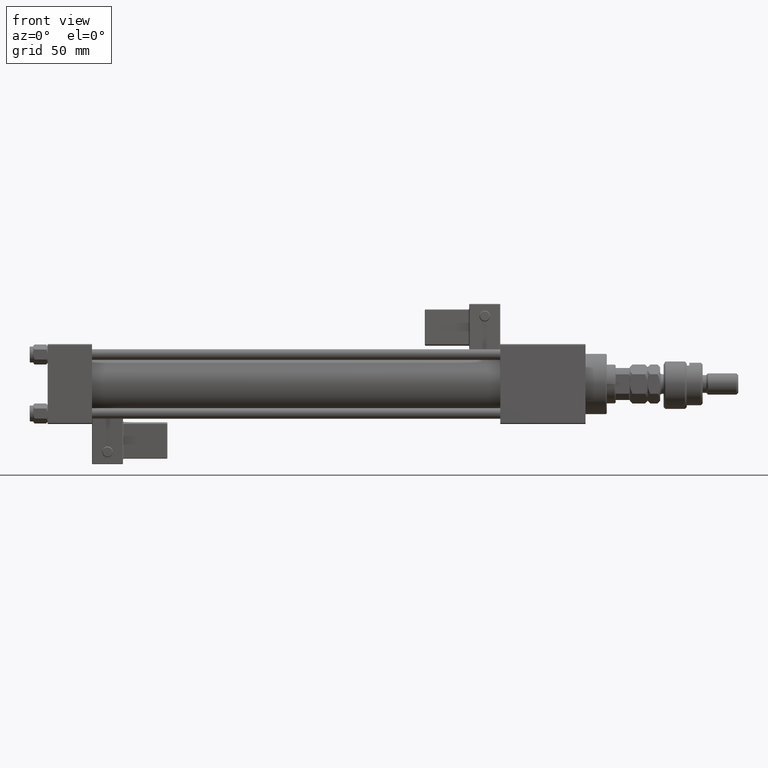
[diagram: clean part render]
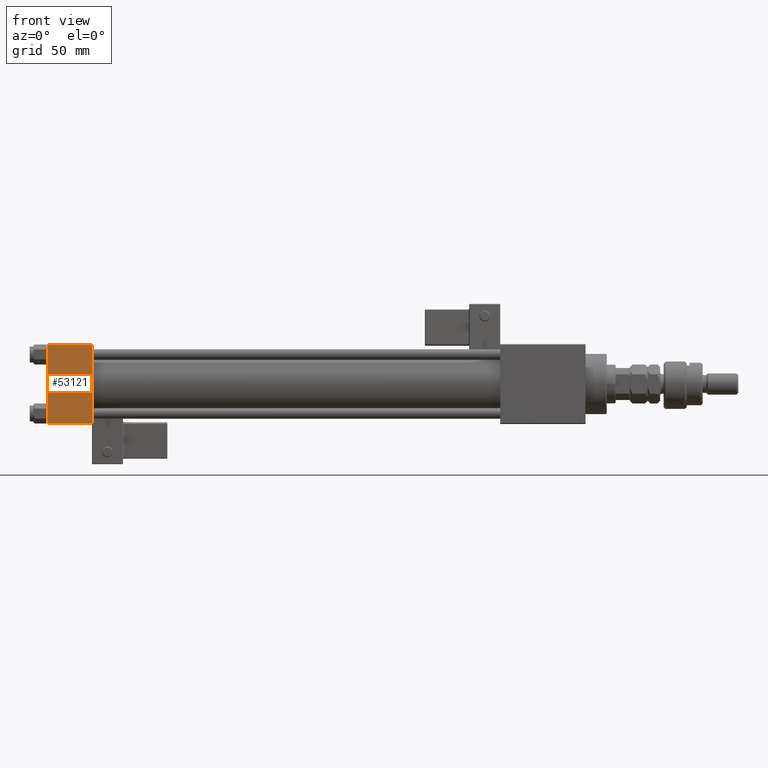
[diagram: same view with one face highlighted and labeled with its STEP entity id]
A machine part, front view. The second image highlights one B-rep face of the part: STEP entity #53121.
In plain terms, the highlighted planar face has unit normal (0, 1, 0).
Its self-contained STEP definition (entity closure, byte-faithful):
#730 = AXIS2_PLACEMENT_3D ( 'NONE', #2288, #36222, #53308 ) ;
#1307 = VECTOR ( 'NONE', #42256, 1000.000000000000000 ) ;
#1794 = CARTESIAN_POINT ( 'NONE',  ( 25.00000000000000000, -22.50000000000000000, 22.00000000000000000 ) ) ;
#2288 = CARTESIAN_POINT ( 'NONE',  ( 25.00000000000000000, -22.50000000000000000, 22.50000000000000000 ) ) ;
#2385 = CARTESIAN_POINT ( 'NONE',  ( 0.000000000000000000, -22.50000000000000000, 22.00000000000000000 ) ) ;
#2845 = PLANE ( 'NONE',  #730 ) ;
#3290 = ORIENTED_EDGE ( 'NONE', *, *, #8966, .F. ) ;
#3488 = LINE ( 'NONE', #12176, #5006 ) ;
#5006 = VECTOR ( 'NONE', #37937, 1000.000000000000000 ) ;
#5508 = EDGE_CURVE ( 'NONE', #15736, #7306, #27593, .T. ) ;
#7306 = VERTEX_POINT ( 'NONE', #2385 ) ;
#7800 = CARTESIAN_POINT ( 'NONE',  ( 0.000000000000000000, -22.50000000000000000, 22.50000000000000000 ) ) ;
#8067 = LINE ( 'NONE', #51782, #1307 ) ;
#8928 = EDGE_CURVE ( 'NONE', #7306, #33150, #46193, .T. ) ;
#8966 = EDGE_CURVE ( 'NONE', #15736, #33172, #8067, .T. ) ;
#9608 = CARTESIAN_POINT ( 'NONE',  ( 0.000000000000000000, -22.50000000000000000, -21.99999999999997158 ) ) ;
#12176 = CARTESIAN_POINT ( 'NONE',  ( 25.00000000000000000, -22.50000000000000000, -21.99999999999998579 ) ) ;
#15736 = VERTEX_POINT ( 'NONE', #45666 ) ;
#20723 = EDGE_CURVE ( 'NONE', #33150, #33172, #3488, .T. ) ;
#23683 = ORIENTED_EDGE ( 'NONE', *, *, #20723, .T. ) ;
#27593 = LINE ( 'NONE', #1794, #46917 ) ;
#31325 = EDGE_LOOP ( 'NONE', ( #32344, #23683, #3290, #53414 ) ) ;
#32344 = ORIENTED_EDGE ( 'NONE', *, *, #8928, .T. ) ;
#33150 = VERTEX_POINT ( 'NONE', #9608 ) ;
#33172 = VERTEX_POINT ( 'NONE', #40149 ) ;
#36222 = DIRECTION ( 'NONE',  ( -0.000000000000000000, 1.000000000000000000, 0.000000000000000000 ) ) ;
#37937 = DIRECTION ( 'NONE',  ( 1.000000000000000000, 0.000000000000000000, 0.000000000000000000 ) ) ;
#40149 = CARTESIAN_POINT ( 'NONE',  ( 25.00000000000000000, -22.50000000000000000, -21.99999999999997158 ) ) ;
#41995 = DIRECTION ( 'NONE',  ( 0.000000000000000000, 0.000000000000000000, -1.000000000000000000 ) ) ;
#42256 = DIRECTION ( 'NONE',  ( 0.000000000000000000, 0.000000000000000000, -1.000000000000000000 ) ) ;
#44283 = VECTOR ( 'NONE', #41995, 1000.000000000000000 ) ;
#45171 = FACE_OUTER_BOUND ( 'NONE', #31325, .T. ) ;
#45666 = CARTESIAN_POINT ( 'NONE',  ( 25.00000000000000000, -22.50000000000000000, 22.00000000000000000 ) ) ;
#46193 = LINE ( 'NONE', #7800, #44283 ) ;
#46917 = VECTOR ( 'NONE', #48605, 1000.000000000000000 ) ;
#48605 = DIRECTION ( 'NONE',  ( -1.000000000000000000, 0.000000000000000000, 0.000000000000000000 ) ) ;
#51782 = CARTESIAN_POINT ( 'NONE',  ( 25.00000000000000000, -22.50000000000000000, 22.50000000000000000 ) ) ;
#53121 = ADVANCED_FACE ( 'NONE', ( #45171 ), #2845, .F. ) ;
#53308 = DIRECTION ( 'NONE',  ( 0.000000000000000000, -0.000000000000000000, 1.000000000000000000 ) ) ;
#53414 = ORIENTED_EDGE ( 'NONE', *, *, #5508, .T. ) ;